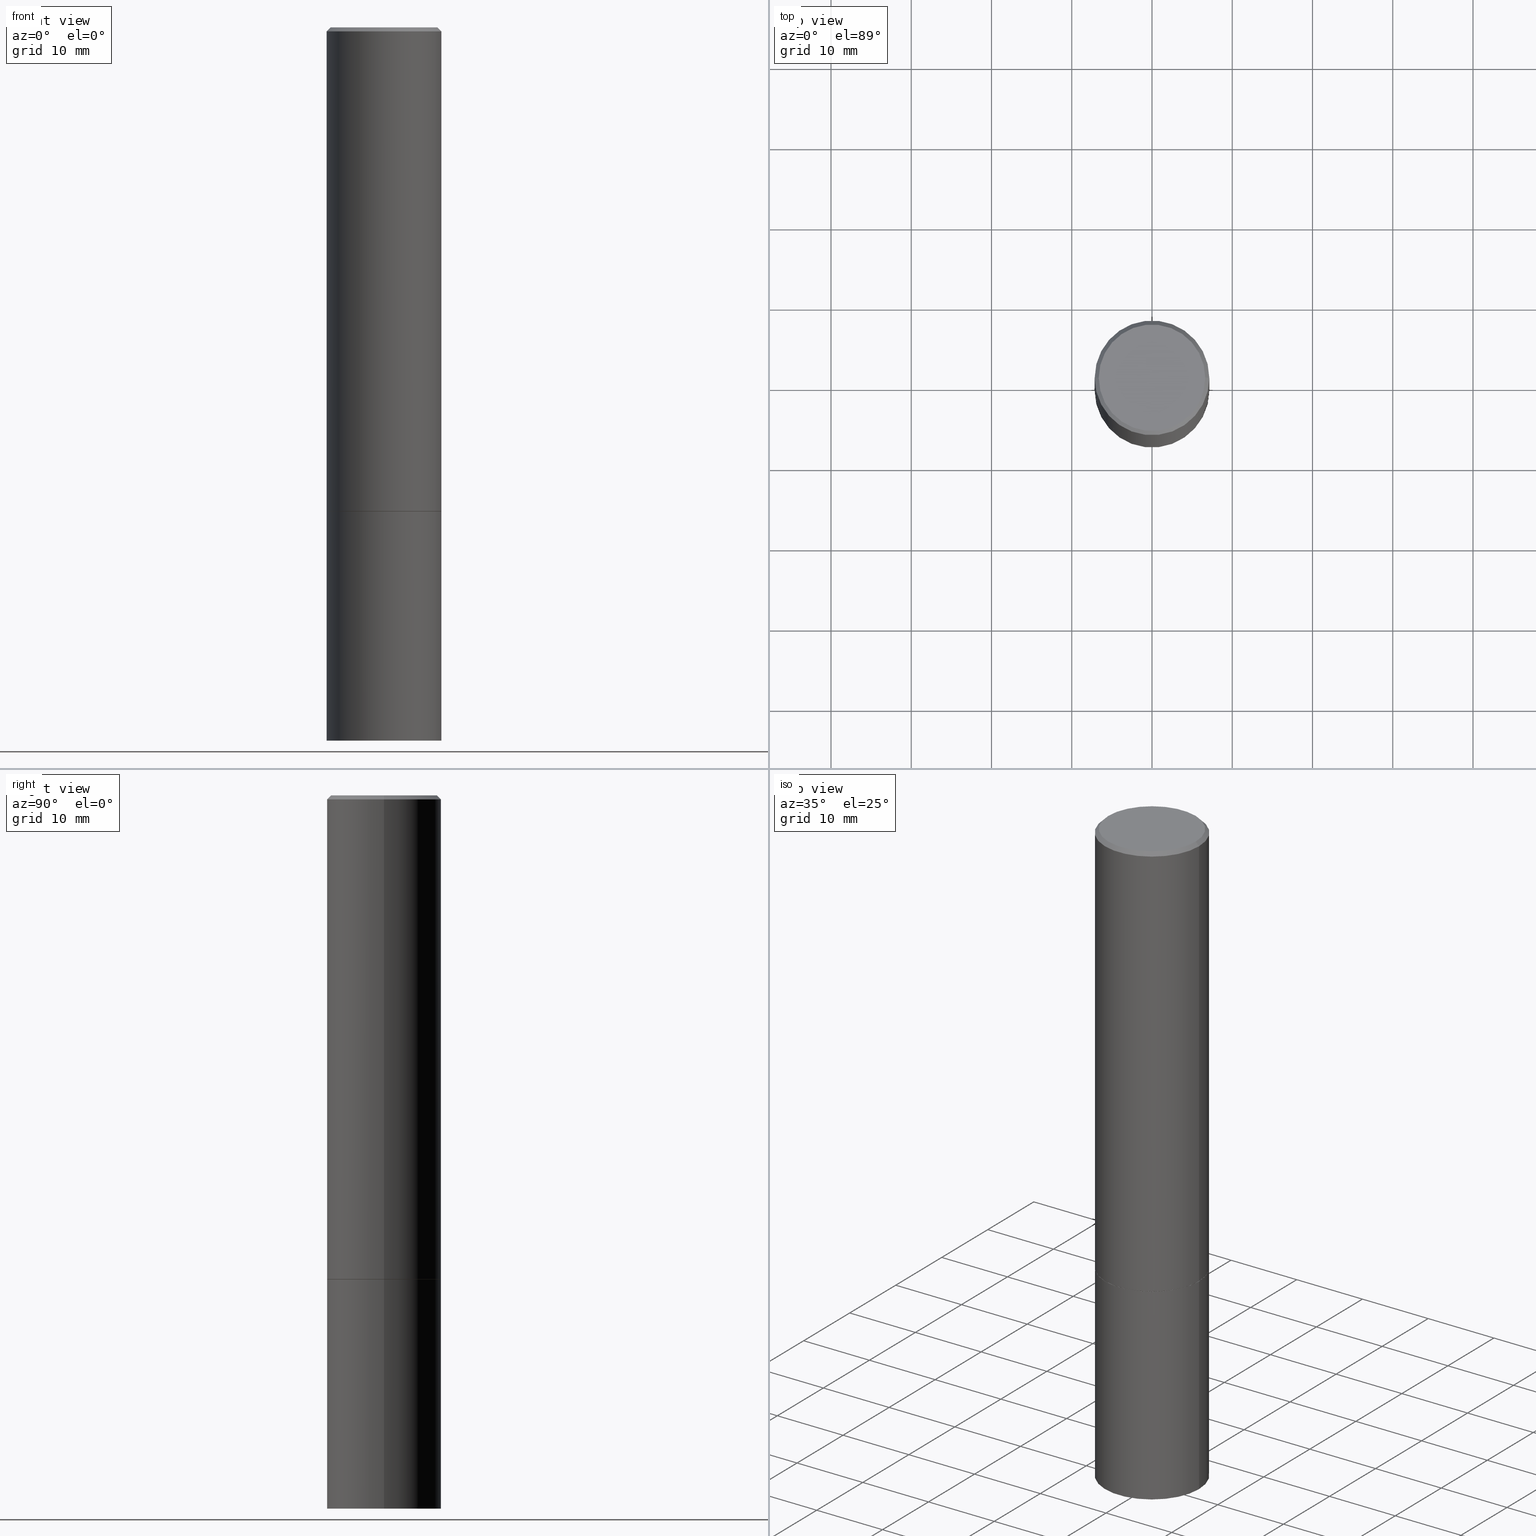
[diagram: canonical four-view strip — front | top / right | iso, engineering-drawing reading convention]
A machine part, canonical four-view strip (front | top / right | iso — engineering-drawing reading convention). The complete STEP part file that produces these views, byte-faithful:
ISO-10303-21;
HEADER;
FILE_DESCRIPTION (( 'STEP AP203' ),
    '1' );
FILE_NAME ('39065.STEP',
    '2023-03-21T20:49:27',
    ( '' ),
    ( '' ),
    'SwSTEP 2.0',
    'SolidWorks 2022',
    '' );
FILE_SCHEMA (( 'CONFIG_CONTROL_DESIGN' ));
ENDSEC;

DATA;
#1 = CYLINDRICAL_SURFACE ( 'NONE', #351, 0.2812499999999998890 ) ;
#2 = DIRECTION ( 'NONE',  ( -2.445468806185136597E-29, 3.491481338843145583E-15, 1.000000000000000000 ) ) ;
#3 = CIRCLE ( 'NONE', #37, 0.2802499999999999991 ) ;
#4 = ORIENTED_EDGE ( 'NONE', *, *, #57, .F. ) ;
#5 = LINE ( 'NONE', #100, #162 ) ;
#6 = DIRECTION ( 'NONE',  ( -2.445468806185136597E-29, 3.491481338843145583E-15, 1.000000000000000000 ) ) ;
#7 = DIMENSIONAL_EXPONENTS ( 1.000000000000000000, 0.000000000000000000, 0.000000000000000000, 0.000000000000000000, 0.000000000000000000, 0.000000000000000000, 0.000000000000000000 ) ;
#8 = CARTESIAN_POINT ( 'NONE',  ( 5.807988414689698296E-29, -8.292268179752468540E-15, -2.374999999999999556 ) ) ;
#9 = CONICAL_SURFACE ( 'NONE', #314, 0.2802499999999999991, 0.7853981633975678500 ) ;
#10 = CC_DESIGN_SECURITY_CLASSIFICATION ( #293, ( #260 ) ) ;
#11 = ADVANCED_FACE ( 'NONE', ( #206 ), #292, .T. ) ;
#12 =( LENGTH_UNIT ( ) NAMED_UNIT ( * ) SI_UNIT ( $, .METRE. ) );
#13 = APPROVAL_DATE_TIME ( #343, #134 ) ;
#14 = ADVANCED_FACE ( 'NONE', ( #33 ), #184, .F. ) ;
#15 = APPROVAL_STATUS ( 'not_yet_approved' ) ;
#16 = APPROVAL_DATE_TIME ( #370, #383 ) ;
#17 = ORIENTED_EDGE ( 'NONE', *, *, #302, .F. ) ;
#18 = PERSON_AND_ORGANIZATION ( #221, #227 ) ;
#19 = VERTEX_POINT ( 'NONE', #61 ) ;
#20 = APPROVAL ( #136, 'UNSPECIFIED' ) ;
#21 = DIRECTION ( 'NONE',  ( -1.000000000000000000, 6.982962677686267499E-15, 0.000000000000000000 ) ) ;
#22 = ORIENTED_EDGE ( 'NONE', *, *, #251, .T. ) ;
#23 = CARTESIAN_POINT ( 'NONE',  ( 4.890937612370292426E-31, -6.982962677686317493E-17, -0.02000000000000007674 ) ) ;
#24 = DIRECTION ( 'NONE',  ( -1.000000000000000000, 6.982962677686265922E-15, -4.876176775795935793E-29 ) ) ;
#25 = VECTOR ( 'NONE', #334, 39.37007874015748143 ) ;
#26 = CARTESIAN_POINT ( 'NONE',  ( 0.000000000000000000, 0.000000000000000000, 0.000000000000000000 ) ) ;
#27 = CC_DESIGN_PERSON_AND_ORGANIZATION_ASSIGNMENT ( #18, #290, ( #260 ) ) ;
#28 = CARTESIAN_POINT ( 'NONE',  ( 5.807988414689698296E-29, -8.292268179752468540E-15, -2.374999999999999556 ) ) ;
#29 = CARTESIAN_POINT ( 'NONE',  ( -0.2812500000000000555, -2.180901718269960671E-15, -2.373999999999999666 ) ) ;
#30 = ORIENTED_EDGE ( 'NONE', *, *, #368, .T. ) ;
#31 = LINE ( 'NONE', #128, #42 ) ;
#32 = VECTOR ( 'NONE', #236, 39.37007874015748143 ) ;
#33 = FACE_OUTER_BOUND ( 'NONE', #324, .T. ) ;
#34 = DIRECTION ( 'NONE',  ( 1.000000000000000000, -6.982962677686269866E-15, 0.000000000000000000 ) ) ;
#35 = EDGE_CURVE ( 'NONE', #203, #199, #66, .T. ) ;
#36 = CARTESIAN_POINT ( 'NONE',  ( 4.890937612370292426E-31, -6.982962677686317493E-17, -0.02000000000000007674 ) ) ;
#37 = AXIS2_PLACEMENT_3D ( 'NONE', #8, #133, #94 ) ;
#38 = CC_DESIGN_APPROVAL ( #383, ( #260 ) ) ;
#39 = APPROVAL_DATE_TIME ( #80, #20 ) ;
#40 = ADVANCED_FACE ( 'NONE', ( #325 ), #110, .T. ) ;
#41 = PERSON_AND_ORGANIZATION ( #221, #227 ) ;
#42 = VECTOR ( 'NONE', #361, 39.37007874015748143 ) ;
#43 = CALENDAR_DATE ( 2023, 21, 3 ) ;
#44 = PRODUCT_RELATED_PRODUCT_CATEGORY ( 'detail', '', ( #58 ) ) ;
#45 = ORIENTED_EDGE ( 'NONE', *, *, #258, .F. ) ;
#46 = ORIENTED_EDGE ( 'NONE', *, *, #194, .T. ) ;
#47 = MECHANICAL_CONTEXT ( 'NONE', #358, 'mechanical' ) ;
#48 = ORIENTED_EDGE ( 'NONE', *, *, #327, .T. ) ;
#49 = CC_DESIGN_PERSON_AND_ORGANIZATION_ASSIGNMENT ( #257, #108, ( #293 ) ) ;
#50 = ORIENTED_EDGE ( 'NONE', *, *, #194, .F. ) ;
#51 = AXIS2_PLACEMENT_3D ( 'NONE', #330, #95, #180 ) ;
#52 = CC_DESIGN_APPROVAL ( #134, ( #200 ) ) ;
#53 = EDGE_CURVE ( 'NONE', #207, #240, #271, .T. ) ;
#54 = DIRECTION ( 'NONE',  ( -2.445468806185136877E-29, 3.491481338843145188E-15, 1.000000000000000000 ) ) ;
#55 = VERTEX_POINT ( 'NONE', #242 ) ;
#56 = CARTESIAN_POINT ( 'NONE',  ( 1.048013948307262461E-27, -1.496286165706713557E-13, -42.85533905223412887 ) ) ;
#57 = EDGE_CURVE ( 'NONE', #233, #101, #298, .T. ) ;
#58 = PRODUCT ( '39065', '39065', '', ( #47 ) ) ;
#59 = LINE ( 'NONE', #328, #225 ) ;
#60 = CIRCLE ( 'NONE', #210, 0.2612499999999996492 ) ;
#61 = CARTESIAN_POINT ( 'NONE',  ( -0.2812500000000000000, -8.257824988526457957E-15, -2.374999999999999556 ) ) ;
#62 = VERTEX_POINT ( 'NONE', #129 ) ;
#63 = DIRECTION ( 'NONE',  ( -2.445468806185136877E-29, 3.491481338843145188E-15, 1.000000000000000000 ) ) ;
#64 = CARTESIAN_POINT ( 'NONE',  ( 0.000000000000000000, 0.000000000000000000, 0.000000000000000000 ) ) ;
#65 =( CONVERSION_BASED_UNIT ( 'INCH', #216 ) LENGTH_UNIT ( ) NAMED_UNIT ( #7 ) );
#66 = CIRCLE ( 'NONE', #254, 0.2802499999999999991 ) ;
#67 = FACE_OUTER_BOUND ( 'NONE', #85, .T. ) ;
#68 = ORIENTED_EDGE ( 'NONE', *, *, #35, .T. ) ;
#69 = CARTESIAN_POINT ( 'NONE',  ( 0.2812500000000000000, -1.963958253099262512E-15, 1.371424718192607012E-29 ) ) ;
#70 = ORIENTED_EDGE ( 'NONE', *, *, #371, .T. ) ;
#71 = CARTESIAN_POINT ( 'NONE',  ( 8.559140821647976968E-29, -1.222018468595100934E-14, -3.500000000000000000 ) ) ;
#72 = CONICAL_SURFACE ( 'NONE', #322, 751.2258538476771719, 1.518436449235074370 ) ;
#73 = EDGE_CURVE ( 'NONE', #354, #62, #59, .T. ) ;
#74 = DATE_AND_TIME ( #378, #385 ) ;
#75 = VECTOR ( 'NONE', #217, 39.37007874015748143 ) ;
#76 = APPROVAL_PERSON_ORGANIZATION ( #169, #383, #196 ) ;
#77 = PERSON_AND_ORGANIZATION ( #221, #227 ) ;
#78 = ORIENTED_EDGE ( 'NONE', *, *, #73, .T. ) ;
#79 = ORIENTED_EDGE ( 'NONE', *, *, #53, .T. ) ;
#80 = DATE_AND_TIME ( #135, #323 ) ;
#81 = ORIENTED_EDGE ( 'NONE', *, *, #356, .T. ) ;
#82 = AXIS2_PLACEMENT_3D ( 'NONE', #160, #339, #305 ) ;
#83 = EDGE_CURVE ( 'NONE', #207, #354, #192, .T. ) ;
#84 = CARTESIAN_POINT ( 'NONE',  ( 0.2812499999999998890, -1.414969974782425102E-14, -3.500000000000000000 ) ) ;
#85 = EDGE_LOOP ( 'NONE', ( #321, #70, #348, #291 ) ) ;
#86 = CYLINDRICAL_SURFACE ( 'NONE', #284, 0.2812499999999998890 ) ;
#87 = EDGE_LOOP ( 'NONE', ( #300, #170, #197, #345 ) ) ;
#88 = DIRECTION ( 'NONE',  ( -2.445468806185136597E-29, 3.491481338843145583E-15, 1.000000000000000000 ) ) ;
#89 = AXIS2_PLACEMENT_3D ( 'NONE', #245, #313, #151 ) ;
#90 = CARTESIAN_POINT ( 'NONE',  ( -0.2812500000000000000, 1.998401444325281773E-15, -1.383450494134192269E-29 ) ) ;
#91 = CC_DESIGN_PERSON_AND_ORGANIZATION_ASSIGNMENT ( #234, #375, ( #58 ) ) ;
#92 = CARTESIAN_POINT ( 'NONE',  ( 4.890937612370292426E-31, -6.982962677686317493E-17, -0.02000000000000007674 ) ) ;
#93 = DIRECTION ( 'NONE',  ( -2.445468806185136597E-29, 3.491481338843145583E-15, 1.000000000000000000 ) ) ;
#94 = DIRECTION ( 'NONE',  ( 1.000000000000000000, -6.982962677686265922E-15, 0.000000000000000000 ) ) ;
#95 = DIRECTION ( 'NONE',  ( -2.445468806185136597E-29, 3.491481338843145583E-15, 1.000000000000000000 ) ) ;
#96 = EDGE_CURVE ( 'NONE', #19, #55, #267, .T. ) ;
#97 = LINE ( 'NONE', #220, #154 ) ;
#98 = AXIS2_PLACEMENT_3D ( 'NONE', #64, #363, #182 ) ;
#99 = APPLICATION_CONTEXT ( 'configuration controlled 3d designs of mechanical parts and assemblies' ) ;
#100 = CARTESIAN_POINT ( 'NONE',  ( -0.2812499999999998890, 1.998401444325280984E-15, -1.383450494134191428E-29 ) ) ;
#101 = VERTEX_POINT ( 'NONE', #120 ) ;
#102 = MANIFOLD_SOLID_BREP ( 'Body-Move/Copy2[1]', #208 ) ;
#103 = SECURITY_CLASSIFICATION_LEVEL ( 'unclassified' ) ;
#104 = MANIFOLD_SOLID_BREP ( 'Body-Move/Copy2[2]', #161 ) ;
#105 = AXIS2_PLACEMENT_3D ( 'NONE', #357, #122, #299 ) ;
#106 = LOCAL_TIME ( 16, 49, 27.00000000000000000, #228 ) ;
#107 = ADVANCED_FACE ( 'NONE', ( #150 ), #123, .T. ) ;
#108 = PERSON_AND_ORGANIZATION_ROLE ( 'classification_officer' ) ;
#109 = APPLICATION_PROTOCOL_DEFINITION ( 'international standard', 'config_control_design', 1994, #99 ) ;
#110 = CONICAL_SURFACE ( 'NONE', #250, 0.2812499999999997224, 0.7853981633974471688 ) ;
#111 = ORIENTED_EDGE ( 'NONE', *, *, #83, .T. ) ;
#112 = DATE_TIME_ROLE ( 'classification_date' ) ;
#113 = ADVANCED_FACE ( 'NONE', ( #67 ), #1, .T. ) ;
#114 = EDGE_LOOP ( 'NONE', ( #17, #320, #373 ) ) ;
#115 = DIRECTION ( 'NONE',  ( 1.000000000000000000, -6.982962677686266711E-15, 0.000000000000000000 ) ) ;
#116 = ORIENTED_EDGE ( 'NONE', *, *, #175, .F. ) ;
#117 = CIRCLE ( 'NONE', #336, 0.2812499999999997224 ) ;
#118 = APPROVAL_PERSON_ORGANIZATION ( #231, #134, #347 ) ;
#119 = FACE_OUTER_BOUND ( 'NONE', #381, .T. ) ;
#120 = CARTESIAN_POINT ( 'NONE',  ( -0.2812499999999998890, -1.025622643285174762E-14, -3.500000000000000000 ) ) ;
#121 = CARTESIAN_POINT ( 'NONE',  ( 5.805542945883512693E-29, -8.288776698413627111E-15, -2.373999999999999666 ) ) ;
#122 = DIRECTION ( 'NONE',  ( 2.438088387897960049E-29, -3.491481338843145188E-15, -1.000000000000000000 ) ) ;
#123 = CYLINDRICAL_SURFACE ( 'NONE', #51, 0.2812500000000000000 ) ;
#124 = CONICAL_SURFACE ( 'NONE', #167, 0.2812499999999997224, 0.7853981633974471688 ) ;
#125 = DIRECTION ( 'NONE',  ( -2.438088387897960049E-29, 3.491481338843145188E-15, 1.000000000000000000 ) ) ;
#126 = DIRECTION ( 'NONE',  ( 1.000000000000000000, -6.982962677686269866E-15, 0.000000000000000000 ) ) ;
#127 = ADVANCED_FACE ( 'NONE', ( #390 ), #215, .F. ) ;
#128 = CARTESIAN_POINT ( 'NONE',  ( -0.2802499999999999991, -6.300972162784787775E-15, -2.374999999999999556 ) ) ;
#129 = CARTESIAN_POINT ( 'NONE',  ( 0.2812499999999997224, -1.999344688650104184E-15, -0.02000000000000007674 ) ) ;
#130 = EDGE_CURVE ( 'NONE', #142, #233, #269, .T. ) ;
#131 = EDGE_LOOP ( 'NONE', ( #159, #262, #79, #22 ) ) ;
#132 =( NAMED_UNIT ( * ) SI_UNIT ( $, .STERADIAN. ) SOLID_ANGLE_UNIT ( ) );
#133 = DIRECTION ( 'NONE',  ( -2.445468806185136597E-29, 3.491481338843145583E-15, 1.000000000000000000 ) ) ;
#134 = APPROVAL ( #15, 'UNSPECIFIED' ) ;
#135 = CALENDAR_DATE ( 2023, 21, 3 ) ;
#136 = APPROVAL_STATUS ( 'not_yet_approved' ) ;
#137 = VERTEX_POINT ( 'NONE', #312 ) ;
#138 = ADVANCED_FACE ( 'NONE', ( #193 ), #367, .T. ) ;
#139 = COORDINATED_UNIVERSAL_TIME_OFFSET ( 5, 0, .BEHIND. ) ;
#140 = VERTEX_POINT ( 'NONE', #29 ) ;
#141 = PERSON_AND_ORGANIZATION ( #221, #227 ) ;
#142 = VERTEX_POINT ( 'NONE', #382 ) ;
#143 = EDGE_LOOP ( 'NONE', ( #111, #81 ) ) ;
#144 = ORIENTED_EDGE ( 'NONE', *, *, #356, .F. ) ;
#145 = UNCERTAINTY_MEASURE_WITH_UNIT (LENGTH_MEASURE( 1.000000000000000082E-05 ), #65, 'distance_accuracy_value', 'NONE');
#146 = DIRECTION ( 'NONE',  ( -2.445468806185136597E-29, 3.491481338843145583E-15, 1.000000000000000000 ) ) ;
#147 = AXIS2_PLACEMENT_3D ( 'NONE', #153, #6, #126 ) ;
#148 =( GEOMETRIC_REPRESENTATION_CONTEXT ( 3 ) GLOBAL_UNCERTAINTY_ASSIGNED_CONTEXT ( ( #145 ) ) GLOBAL_UNIT_ASSIGNED_CONTEXT ( ( #65, #273, #132 ) ) REPRESENTATION_CONTEXT ( 'NONE', 'WORKASPACE' ) );
#149 = EDGE_LOOP ( 'NONE', ( #46, #230, #116, #265 ) ) ;
#150 = FACE_OUTER_BOUND ( 'NONE', #157, .T. ) ;
#151 = DIRECTION ( 'NONE',  ( 1.000000000000000000, -6.982962677686265133E-15, 0.000000000000000000 ) ) ;
#152 = EDGE_CURVE ( 'NONE', #101, #19, #296, .T. ) ;
#153 = CARTESIAN_POINT ( 'NONE',  ( 8.559140821647976968E-29, -1.222018468595100934E-14, -3.500000000000000000 ) ) ;
#154 = VECTOR ( 'NONE', #222, 39.37007874015748143 ) ;
#155 = PLANE ( 'NONE',  #376 ) ;
#156 = CARTESIAN_POINT ( 'NONE',  ( 5.807988414689698296E-29, -8.292268179752468540E-15, -2.374999999999999556 ) ) ;
#157 = EDGE_LOOP ( 'NONE', ( #179, #205, #274, #183 ) ) ;
#158 = DIRECTION ( 'NONE',  ( -2.445468806185136597E-29, 3.491481338843145583E-15, 1.000000000000000000 ) ) ;
#159 = ORIENTED_EDGE ( 'NONE', *, *, #73, .F. ) ;
#160 = CARTESIAN_POINT ( 'NONE',  ( 5.807988414689698296E-29, -8.292268179752468540E-15, -2.374999999999999556 ) ) ;
#161 = CLOSED_SHELL ( 'NONE', ( #11, #237, #40, #306, #113, #310, #344, #127 ) ) ;
#162 = VECTOR ( 'NONE', #63, 39.37007874015748143 ) ;
#163 = DIRECTION ( 'NONE',  ( 2.445468806185136597E-29, -3.491481338843145583E-15, -1.000000000000000000 ) ) ;
#164 = ADVANCED_BREP_SHAPE_REPRESENTATION ( '39065', ( #102, #104, #211 ), #148 ) ;
#165 = SHAPE_DEFINITION_REPRESENTATION ( #374, #164 ) ;
#166 = CARTESIAN_POINT ( 'NONE',  ( 0.000000000000000000, 0.000000000000000000, 0.000000000000000000 ) ) ;
#167 = AXIS2_PLACEMENT_3D ( 'NONE', #360, #163, #253 ) ;
#168 = ADVANCED_FACE ( 'NONE', ( #119 ), #72, .F. ) ;
#169 = PERSON_AND_ORGANIZATION ( #221, #227 ) ;
#170 = ORIENTED_EDGE ( 'NONE', *, *, #152, .T. ) ;
#171 = DATE_AND_TIME ( #342, #219 ) ;
#172 = ORIENTED_EDGE ( 'NONE', *, *, #327, .F. ) ;
#173 = VECTOR ( 'NONE', #54, 39.37007874015748143 ) ;
#174 = APPROVAL_PERSON_ORGANIZATION ( #41, #20, #317 ) ;
#175 = EDGE_CURVE ( 'NONE', #62, #240, #341, .T. ) ;
#176 = ORIENTED_EDGE ( 'NONE', *, *, #302, .T. ) ;
#177 = CARTESIAN_POINT ( 'NONE',  ( 0.000000000000000000, 0.000000000000000000, 0.000000000000000000 ) ) ;
#178 = DIRECTION ( 'NONE',  ( 2.445468806185136597E-29, -3.491481338843145583E-15, -1.000000000000000000 ) ) ;
#179 = ORIENTED_EDGE ( 'NONE', *, *, #152, .F. ) ;
#180 = DIRECTION ( 'NONE',  ( 1.000000000000000000, -6.982962677686266711E-15, 4.876176775795935793E-29 ) ) ;
#181 = CIRCLE ( 'NONE', #195, 0.2812500000000000555 ) ;
#182 = DIRECTION ( 'NONE',  ( 1.000000000000000000, -6.982962677686266711E-15, 4.876176775795935793E-29 ) ) ;
#183 = ORIENTED_EDGE ( 'NONE', *, *, #96, .F. ) ;
#184 = PLANE ( 'NONE',  #105 ) ;
#185 = CARTESIAN_POINT ( 'NONE',  ( 0.000000000000000000, 0.000000000000000000, 0.000000000000000000 ) ) ;
#186 = AXIS2_PLACEMENT_3D ( 'NONE', #332, #297, #24 ) ;
#187 = CARTESIAN_POINT ( 'NONE',  ( -2.125961307163225596E-18, -1.216872134062624986E-14, -3.485260312076646549 ) ) ;
#188 = DIRECTION ( 'NONE',  ( -2.445468806185136597E-29, 3.491481338843145583E-15, 1.000000000000000000 ) ) ;
#189 = DIRECTION ( 'NONE',  ( 0.9986295347545742773, -7.033825938271996334E-15, -0.05233595624293620185 ) ) ;
#190 = FACE_OUTER_BOUND ( 'NONE', #288, .T. ) ;
#191 = EDGE_CURVE ( 'NONE', #137, #62, #380, .T. ) ;
#192 = CIRCLE ( 'NONE', #98, 0.2612499999999996492 ) ;
#193 = FACE_OUTER_BOUND ( 'NONE', #87, .T. ) ;
#194 = EDGE_CURVE ( 'NONE', #137, #140, #181, .T. ) ;
#195 = AXIS2_PLACEMENT_3D ( 'NONE', #121, #350, #355 ) ;
#196 = APPROVAL_ROLE ( '' ) ;
#197 = ORIENTED_EDGE ( 'NONE', *, *, #295, .F. ) ;
#198 = DIRECTION ( 'NONE',  ( 0.000000000000000000, 0.000000000000000000, 1.000000000000000000 ) ) ;
#199 = VERTEX_POINT ( 'NONE', #201 ) ;
#200 = PRODUCT_DEFINITION ( 'UNKNOWN', '', #260, #386 ) ;
#201 = CARTESIAN_POINT ( 'NONE',  ( -0.2802499999999999991, -6.295673708436565373E-15, -2.374999999999999556 ) ) ;
#202 = VECTOR ( 'NONE', #214, 39.37007874015748143 ) ;
#203 = VERTEX_POINT ( 'NONE', #352 ) ;
#204 = FACE_OUTER_BOUND ( 'NONE', #114, .T. ) ;
#205 = ORIENTED_EDGE ( 'NONE', *, *, #333, .T. ) ;
#206 = FACE_OUTER_BOUND ( 'NONE', #379, .T. ) ;
#207 = VERTEX_POINT ( 'NONE', #266 ) ;
#208 = CLOSED_SHELL ( 'NONE', ( #138, #235, #168, #107, #14 ) ) ;
#209 = CARTESIAN_POINT ( 'NONE',  ( -0.2812499999999997224, 1.894128626322397242E-15, -0.02000000000000007674 ) ) ;
#210 = AXIS2_PLACEMENT_3D ( 'NONE', #340, #247, #249 ) ;
#211 = AXIS2_PLACEMENT_3D ( 'NONE', #166, #198, #366 ) ;
#212 = DIRECTION ( 'NONE',  ( -2.445468806185136597E-29, 3.491481338843145583E-15, 1.000000000000000000 ) ) ;
#213 = DIRECTION ( 'NONE',  ( 1.000000000000000000, -6.982962677686265922E-15, 0.000000000000000000 ) ) ;
#214 = DIRECTION ( 'NONE',  ( -2.445468806185136877E-29, 3.491481338843145188E-15, 1.000000000000000000 ) ) ;
#215 = PLANE ( 'NONE',  #186 ) ;
#216 = LENGTH_MEASURE_WITH_UNIT ( LENGTH_MEASURE( 0.02539999999999999897 ), #12 );
#217 = DIRECTION ( 'NONE',  ( -0.7071067811865466846, 2.468850131082247989E-15, -0.7071067811865483499 ) ) ;
#218 = CIRCLE ( 'NONE', #82, 0.2812500000000000000 ) ;
#219 = LOCAL_TIME ( 16, 49, 27.00000000000000000, #226 ) ;
#220 = CARTESIAN_POINT ( 'NONE',  ( 0.2802499999999999991, -1.024924347017404425E-14, -2.374999999999999556 ) ) ;
#221 = PERSON ( 'UNSPECIFIED', 'UNSPECIFIED', 'UNSPECIFIED', ('UNSPECIFIED'), ('UNSPECIFIED'), ('UNSPECIFIED') ) ;
#222 = DIRECTION ( 'NONE',  ( 0.7071067811866320607, -2.468850131083142557E-15, 0.7071067811864629737 ) ) ;
#223 = DIRECTION ( 'NONE',  ( 1.000000000000000000, -6.982962677686265922E-15, 0.000000000000000000 ) ) ;
#224 = CC_DESIGN_PERSON_AND_ORGANIZATION_ASSIGNMENT ( #141, #349, ( #260 ) ) ;
#225 = VECTOR ( 'NONE', #248, 39.37007874015748143 ) ;
#226 = COORDINATED_UNIVERSAL_TIME_OFFSET ( 5, 0, .BEHIND. ) ;
#227 = ORGANIZATION ( 'UNSPECIFIED', 'UNSPECIFIED', '' ) ;
#228 = COORDINATED_UNIVERSAL_TIME_OFFSET ( 5, 0, .BEHIND. ) ;
#229 = DATE_TIME_ROLE ( 'creation_date' ) ;
#230 = ORIENTED_EDGE ( 'NONE', *, *, #264, .T. ) ;
#231 = PERSON_AND_ORGANIZATION ( #221, #227 ) ;
#232 = AXIS2_PLACEMENT_3D ( 'NONE', #71, #2, #34 ) ;
#233 = VERTEX_POINT ( 'NONE', #84 ) ;
#234 = PERSON_AND_ORGANIZATION ( #221, #227 ) ;
#235 = ADVANCED_FACE ( 'NONE', ( #204 ), #239, .F. ) ;
#236 = DIRECTION ( 'NONE',  ( -2.445468806185136877E-29, 3.491481338843145188E-15, 1.000000000000000000 ) ) ;
#237 = ADVANCED_FACE ( 'NONE', ( #353 ), #86, .T. ) ;
#238 = CARTESIAN_POINT ( 'NONE',  ( 0.2812499999999998890, -1.963958253099261723E-15, 1.371424718192606451E-29 ) ) ;
#239 = CONICAL_SURFACE ( 'NONE', #369, 751.2258538476771719, 1.518436449235074370 ) ;
#240 = VERTEX_POINT ( 'NONE', #252 ) ;
#241 = DIRECTION ( 'NONE',  ( -1.000000000000000000, 6.982962677686267499E-15, 0.000000000000000000 ) ) ;
#242 = CARTESIAN_POINT ( 'NONE',  ( 0.2812500000000000000, -1.025622643285173184E-14, -2.374999999999999556 ) ) ;
#243 = DIRECTION ( 'NONE',  ( -2.445468806185136597E-29, 3.491481338843145583E-15, 1.000000000000000000 ) ) ;
#244 = DIRECTION ( 'NONE',  ( 1.000000000000000000, -6.982962677686266711E-15, 4.876176775795935793E-29 ) ) ;
#245 = CARTESIAN_POINT ( 'NONE',  ( 5.805542945883512693E-29, -8.288776698413627111E-15, -2.373999999999999666 ) ) ;
#246 = DIRECTION ( 'NONE',  ( 1.000000000000000000, -6.982962677686266711E-15, 0.000000000000000000 ) ) ;
#247 = DIRECTION ( 'NONE',  ( -2.445468806185136597E-29, 3.491481338843145583E-15, 1.000000000000000000 ) ) ;
#248 = DIRECTION ( 'NONE',  ( 0.7071067811865466846, -7.319954787623252890E-15, -0.7071067811865483499 ) ) ;
#249 = DIRECTION ( 'NONE',  ( 1.000000000000000000, -6.982962677686266711E-15, 4.876176775795935793E-29 ) ) ;
#250 = AXIS2_PLACEMENT_3D ( 'NONE', #92, #304, #277 ) ;
#251 = EDGE_CURVE ( 'NONE', #240, #62, #117, .T. ) ;
#252 = CARTESIAN_POINT ( 'NONE',  ( -0.2812499999999997224, 1.894128626322397242E-15, -0.02000000000000007674 ) ) ;
#253 = DIRECTION ( 'NONE',  ( -1.000000000000000000, 6.982962677686266711E-15, 0.000000000000000000 ) ) ;
#254 = AXIS2_PLACEMENT_3D ( 'NONE', #156, #88, #213 ) ;
#255 = CC_DESIGN_APPROVAL ( #20, ( #293 ) ) ;
#256 = PERSON_AND_ORGANIZATION_ROLE ( 'creator' ) ;
#257 = PERSON_AND_ORGANIZATION ( #221, #227 ) ;
#258 = EDGE_CURVE ( 'NONE', #203, #137, #97, .T. ) ;
#259 = CIRCLE ( 'NONE', #89, 0.2812500000000000555 ) ;
#260 = PRODUCT_DEFINITION_FORMATION_WITH_SPECIFIED_SOURCE ( 'ANY', '', #58, .NOT_KNOWN. ) ;
#261 = EDGE_LOOP ( 'NONE', ( #144, #78, #307, #384 ) ) ;
#262 = ORIENTED_EDGE ( 'NONE', *, *, #83, .F. ) ;
#263 = ORIENTED_EDGE ( 'NONE', *, *, #371, .F. ) ;
#264 = EDGE_CURVE ( 'NONE', #140, #240, #5, .T. ) ;
#265 = ORIENTED_EDGE ( 'NONE', *, *, #191, .F. ) ;
#266 = CARTESIAN_POINT ( 'NONE',  ( -0.2612499999999996492, 1.859213812933965987E-15, -1.288019758893701349E-29 ) ) ;
#267 = CIRCLE ( 'NONE', #346, 0.2812500000000000000 ) ;
#268 = CIRCLE ( 'NONE', #232, 0.2812500000000000000 ) ;
#269 = LINE ( 'NONE', #387, #275 ) ;
#270 = DIRECTION ( 'NONE',  ( -2.445468806185136597E-29, 3.491481338843145583E-15, 1.000000000000000000 ) ) ;
#271 = LINE ( 'NONE', #209, #75 ) ;
#272 = DIRECTION ( 'NONE',  ( 1.000000000000000000, -6.982962677686265922E-15, 0.000000000000000000 ) ) ;
#273 =( NAMED_UNIT ( * ) PLANE_ANGLE_UNIT ( ) SI_UNIT ( $, .RADIAN. ) );
#274 = ORIENTED_EDGE ( 'NONE', *, *, #289, .T. ) ;
#275 = VECTOR ( 'NONE', #189, 39.37007874015748143 ) ;
#276 = CARTESIAN_POINT ( 'NONE',  ( 0.2612499999999996492, -1.895824895283957203E-15, 1.300802449975685970E-29 ) ) ;
#277 = DIRECTION ( 'NONE',  ( -1.000000000000000000, 6.982962677686266711E-15, 0.000000000000000000 ) ) ;
#278 = DIRECTION ( 'NONE',  ( 1.000000000000000000, -6.982962677686266711E-15, 4.876176775795935793E-29 ) ) ;
#279 = LINE ( 'NONE', #69, #202 ) ;
#280 = AXIS2_PLACEMENT_3D ( 'NONE', #23, #212, #115 ) ;
#281 = DIRECTION ( 'NONE',  ( 1.000000000000000000, -6.982962677686265922E-15, 4.876176775795935793E-29 ) ) ;
#282 = COORDINATED_UNIVERSAL_TIME_OFFSET ( 5, 0, .BEHIND. ) ;
#283 = COORDINATED_UNIVERSAL_TIME_OFFSET ( 5, 0, .BEHIND. ) ;
#284 = AXIS2_PLACEMENT_3D ( 'NONE', #185, #309, #278 ) ;
#285 = CC_DESIGN_DATE_AND_TIME_ASSIGNMENT ( #171, #229, ( #200 ) ) ;
#286 = ORIENTED_EDGE ( 'NONE', *, *, #130, .F. ) ;
#287 = CALENDAR_DATE ( 2023, 21, 3 ) ;
#288 = EDGE_LOOP ( 'NONE', ( #338, #362 ) ) ;
#289 = EDGE_CURVE ( 'NONE', #233, #55, #279, .T. ) ;
#290 = PERSON_AND_ORGANIZATION_ROLE ( 'creator' ) ;
#291 = ORIENTED_EDGE ( 'NONE', *, *, #251, .F. ) ;
#292 = CONICAL_SURFACE ( 'NONE', #326, 0.2802499999999999991, 0.7853981633975678500 ) ;
#293 = SECURITY_CLASSIFICATION ( '', '', #103 ) ;
#294 = ORIENTED_EDGE ( 'NONE', *, *, #295, .T. ) ;
#295 = EDGE_CURVE ( 'NONE', #55, #19, #218, .T. ) ;
#296 = LINE ( 'NONE', #90, #173 ) ;
#297 = DIRECTION ( 'NONE',  ( 2.438088387897960049E-29, -3.491481338843145188E-15, -1.000000000000000000 ) ) ;
#298 = CIRCLE ( 'NONE', #147, 0.2812500000000000000 ) ;
#299 = DIRECTION ( 'NONE',  ( -1.000000000000000000, 6.982962677686265922E-15, -4.876176775795935793E-29 ) ) ;
#300 = ORIENTED_EDGE ( 'NONE', *, *, #57, .T. ) ;
#301 = ORIENTED_EDGE ( 'NONE', *, *, #258, .T. ) ;
#302 = EDGE_CURVE ( 'NONE', #142, #101, #337, .T. ) ;
#303 = DIRECTION ( 'NONE',  ( 1.000000000000000000, -6.982962677686266711E-15, 4.876176775795935793E-29 ) ) ;
#304 = DIRECTION ( 'NONE',  ( 2.445468806185136597E-29, -3.491481338843145583E-15, -1.000000000000000000 ) ) ;
#305 = DIRECTION ( 'NONE',  ( 1.000000000000000000, -6.982962677686266711E-15, 0.000000000000000000 ) ) ;
#306 = ADVANCED_FACE ( 'NONE', ( #311 ), #124, .T. ) ;
#307 = ORIENTED_EDGE ( 'NONE', *, *, #175, .T. ) ;
#308 = AXIS2_PLACEMENT_3D ( 'NONE', #177, #270, #303 ) ;
#309 = DIRECTION ( 'NONE',  ( -2.445468806185136597E-29, 3.491481338843145583E-15, 1.000000000000000000 ) ) ;
#310 = ADVANCED_FACE ( 'NONE', ( #331 ), #9, .T. ) ;
#311 = FACE_OUTER_BOUND ( 'NONE', #131, .T. ) ;
#312 = CARTESIAN_POINT ( 'NONE',  ( 0.2812500000000000555, -1.025273495151288883E-14, -2.373999999999999666 ) ) ;
#313 = DIRECTION ( 'NONE',  ( -2.445468806185136597E-29, 3.491481338843145583E-15, 1.000000000000000000 ) ) ;
#314 = AXIS2_PLACEMENT_3D ( 'NONE', #364, #188, #223 ) ;
#315 = CARTESIAN_POINT ( 'NONE',  ( 5.807988414689698296E-29, -8.292268179752468540E-15, -2.374999999999999556 ) ) ;
#316 = CC_DESIGN_PERSON_AND_ORGANIZATION_ASSIGNMENT ( #77, #256, ( #200 ) ) ;
#317 = APPROVAL_ROLE ( '' ) ;
#318 = CC_DESIGN_DATE_AND_TIME_ASSIGNMENT ( #74, #112, ( #293 ) ) ;
#319 = APPLICATION_PROTOCOL_DEFINITION ( 'international standard', 'config_control_design', 1994, #358 ) ;
#320 = ORIENTED_EDGE ( 'NONE', *, *, #130, .T. ) ;
#321 = ORIENTED_EDGE ( 'NONE', *, *, #264, .F. ) ;
#322 = AXIS2_PLACEMENT_3D ( 'NONE', #388, #329, #21 ) ;
#323 = LOCAL_TIME ( 16, 49, 27.00000000000000000, #283 ) ;
#324 = EDGE_LOOP ( 'NONE', ( #294, #389 ) ) ;
#325 = FACE_OUTER_BOUND ( 'NONE', #261, .T. ) ;
#326 = AXIS2_PLACEMENT_3D ( 'NONE', #359, #243, #272 ) ;
#327 = EDGE_CURVE ( 'NONE', #199, #140, #31, .T. ) ;
#328 = CARTESIAN_POINT ( 'NONE',  ( 0.2812499999999997224, -1.999344688650104184E-15, -0.02000000000000007674 ) ) ;
#329 = DIRECTION ( 'NONE',  ( 2.445468806185136597E-29, -3.491481338843145583E-15, -1.000000000000000000 ) ) ;
#330 = CARTESIAN_POINT ( 'NONE',  ( 0.000000000000000000, 0.000000000000000000, 0.000000000000000000 ) ) ;
#331 = FACE_OUTER_BOUND ( 'NONE', #335, .T. ) ;
#332 = CARTESIAN_POINT ( 'NONE',  ( 1.824298999545534733E-15, 0.2612499999999996492, -9.121494997727707190E-16 ) ) ;
#333 = EDGE_CURVE ( 'NONE', #101, #233, #268, .T. ) ;
#334 = DIRECTION ( 'NONE',  ( -0.9986295347545742773, 6.790662755453668466E-15, -0.05233595624293620185 ) ) ;
#335 = EDGE_LOOP ( 'NONE', ( #172, #30, #301, #263 ) ) ;
#336 = AXIS2_PLACEMENT_3D ( 'NONE', #36, #158, #365 ) ;
#337 = LINE ( 'NONE', #187, #25 ) ;
#338 = ORIENTED_EDGE ( 'NONE', *, *, #35, .F. ) ;
#339 = DIRECTION ( 'NONE',  ( -2.445468806185136597E-29, 3.491481338843145583E-15, 1.000000000000000000 ) ) ;
#340 = CARTESIAN_POINT ( 'NONE',  ( 0.000000000000000000, 0.000000000000000000, 0.000000000000000000 ) ) ;
#341 = CIRCLE ( 'NONE', #280, 0.2812499999999997224 ) ;
#342 = CALENDAR_DATE ( 2023, 21, 3 ) ;
#343 = DATE_AND_TIME ( #43, #377 ) ;
#344 = ADVANCED_FACE ( 'NONE', ( #190 ), #155, .F. ) ;
#345 = ORIENTED_EDGE ( 'NONE', *, *, #289, .F. ) ;
#346 = AXIS2_PLACEMENT_3D ( 'NONE', #28, #146, #246 ) ;
#347 = APPROVAL_ROLE ( '' ) ;
#348 = ORIENTED_EDGE ( 'NONE', *, *, #191, .T. ) ;
#349 = PERSON_AND_ORGANIZATION_ROLE ( 'design_supplier' ) ;
#350 = DIRECTION ( 'NONE',  ( -2.445468806185136597E-29, 3.491481338843145583E-15, 1.000000000000000000 ) ) ;
#351 = AXIS2_PLACEMENT_3D ( 'NONE', #26, #93, #244 ) ;
#352 = CARTESIAN_POINT ( 'NONE',  ( 0.2802499999999999991, -1.024924347017404425E-14, -2.374999999999999556 ) ) ;
#353 = FACE_OUTER_BOUND ( 'NONE', #149, .T. ) ;
#354 = VERTEX_POINT ( 'NONE', #276 ) ;
#355 = DIRECTION ( 'NONE',  ( 1.000000000000000000, -6.982962677686265133E-15, 0.000000000000000000 ) ) ;
#356 = EDGE_CURVE ( 'NONE', #354, #207, #60, .T. ) ;
#357 = CARTESIAN_POINT ( 'NONE',  ( 1.963958253099320494E-15, 0.2812499999999917288, -2.375000000000000888 ) ) ;
#358 = APPLICATION_CONTEXT ( 'configuration controlled 3d designs of mechanical parts and assemblies' ) ;
#359 = CARTESIAN_POINT ( 'NONE',  ( 5.807988414689698296E-29, -8.292268179752468540E-15, -2.374999999999999556 ) ) ;
#360 = CARTESIAN_POINT ( 'NONE',  ( 4.890937612370292426E-31, -6.982962677686317493E-17, -0.02000000000000007674 ) ) ;
#361 = DIRECTION ( 'NONE',  ( -0.7071067811866320607, 7.493145998870660238E-15, 0.7071067811864629737 ) ) ;
#362 = ORIENTED_EDGE ( 'NONE', *, *, #368, .F. ) ;
#363 = DIRECTION ( 'NONE',  ( -2.445468806185136597E-29, 3.491481338843145583E-15, 1.000000000000000000 ) ) ;
#364 = CARTESIAN_POINT ( 'NONE',  ( 5.807988414689698296E-29, -8.292268179752468540E-15, -2.374999999999999556 ) ) ;
#365 = DIRECTION ( 'NONE',  ( 1.000000000000000000, -6.982962677686266711E-15, 0.000000000000000000 ) ) ;
#366 = DIRECTION ( 'NONE',  ( 1.000000000000000000, 0.000000000000000000, 0.000000000000000000 ) ) ;
#367 = CYLINDRICAL_SURFACE ( 'NONE', #308, 0.2812500000000000000 ) ;
#368 = EDGE_CURVE ( 'NONE', #199, #203, #3, .T. ) ;
#369 = AXIS2_PLACEMENT_3D ( 'NONE', #56, #178, #241 ) ;
#370 = DATE_AND_TIME ( #287, #106 ) ;
#371 = EDGE_CURVE ( 'NONE', #140, #137, #259, .T. ) ;
#372 = APPROVAL_STATUS ( 'not_yet_approved' ) ;
#373 = ORIENTED_EDGE ( 'NONE', *, *, #333, .F. ) ;
#374 = PRODUCT_DEFINITION_SHAPE ( 'NONE', 'NONE',  #200 ) ;
#375 = PERSON_AND_ORGANIZATION_ROLE ( 'design_owner' ) ;
#376 = AXIS2_PLACEMENT_3D ( 'NONE', #315, #125, #281 ) ;
#377 = LOCAL_TIME ( 16, 49, 27.00000000000000000, #282 ) ;
#378 = CALENDAR_DATE ( 2023, 21, 3 ) ;
#379 = EDGE_LOOP ( 'NONE', ( #68, #48, #50, #45 ) ) ;
#380 = LINE ( 'NONE', #238, #32 ) ;
#381 = EDGE_LOOP ( 'NONE', ( #286, #176, #4 ) ) ;
#382 = CARTESIAN_POINT ( 'NONE',  ( 8.521610823772241375E-29, -1.217084730193349714E-14, -3.485260312076646549 ) ) ;
#383 = APPROVAL ( #372, 'UNSPECIFIED' ) ;
#384 = ORIENTED_EDGE ( 'NONE', *, *, #53, .F. ) ;
#385 = LOCAL_TIME ( 16, 49, 27.00000000000000000, #139 ) ;
#386 = DESIGN_CONTEXT ( 'detailed design', #99, 'design' ) ;
#387 = CARTESIAN_POINT ( 'NONE',  ( 2.125961307333687344E-18, -1.216872134062624986E-14, -3.485260312076646549 ) ) ;
#388 = CARTESIAN_POINT ( 'NONE',  ( 1.048013948307262461E-27, -1.496286165706713557E-13, -42.85533905223412887 ) ) ;
#389 = ORIENTED_EDGE ( 'NONE', *, *, #96, .T. ) ;
#390 = FACE_OUTER_BOUND ( 'NONE', #143, .T. ) ;
ENDSEC;
END-ISO-10303-21;
